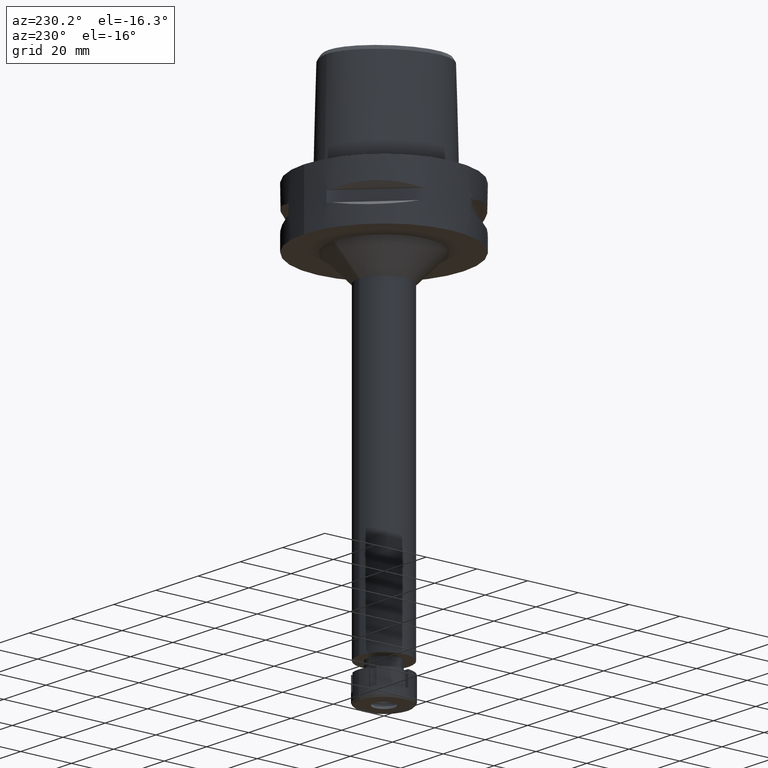
[diagram: clean part render]
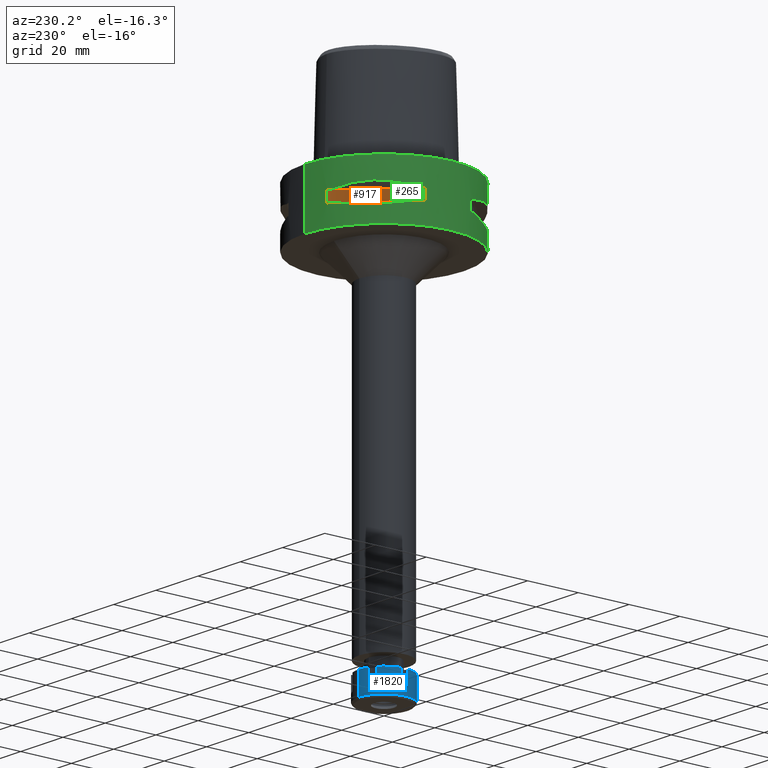
[diagram: same view with three faces highlighted in distinct colors, each labeled with its STEP entity id]
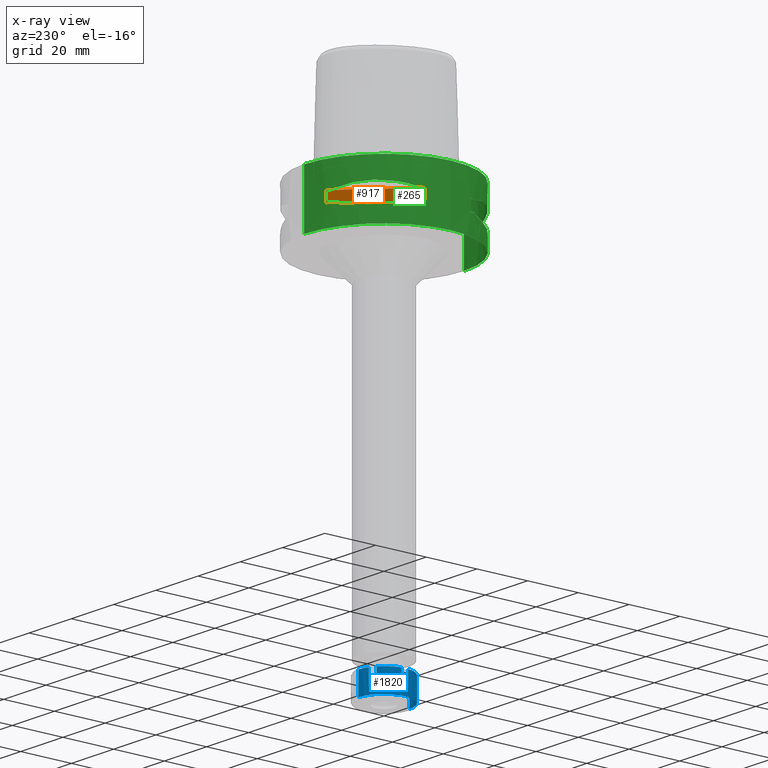
[diagram: x-ray of the same camera — body ghosted, the three highlighted faces saturated]
A machine part, auxiliary view with three faces highlighted in distinct colors.
The next image is the same camera in x-ray (body ghosted, the three faces saturated) — at least one of them is partly hidden behind the body in this view.
Their STEP definitions:

[orange] entity #917 — the highlighted planar face has unit normal (0.7071, -0.7071, 0).
#461 = CARTESIAN_POINT ( 'NONE',  ( -8.981198972019999616, 30.19251670572000279, -9.950000000000001066 ) ) ;
#465 = CARTESIAN_POINT ( 'NONE',  ( -8.981198972017999438, 30.19251670572000279, -14.05000000000000071 ) ) ;
#613 = DIRECTION ( 'NONE',  ( -0.7071067811865474617, -0.7071067811865474617, 0.0000000000000000000 ) ) ;
#917 = ADVANCED_FACE ( 'NONE', ( #4961 ), #4507, .F. ) ;
#957 = EDGE_CURVE ( 'NONE', #1874, #3326, #5499, .T. ) ;
#989 = DIRECTION ( 'NONE',  ( -0.7071067811865474617, -0.7071067811865474617, 0.0000000000000000000 ) ) ;
#1043 = VECTOR ( 'NONE', #1548, 1000.000000000000000 ) ;
#1503 = ORIENTED_EDGE ( 'NONE', *, *, #957, .T. ) ;
#1548 = DIRECTION ( 'NONE',  ( 0.0000000000000000000, 0.0000000000000000000, 1.000000000000000000 ) ) ;
#1576 = DIRECTION ( 'NONE',  ( 0.7071067811865475727, -0.7071067811865475727, 0.0000000000000000000 ) ) ;
#1706 = EDGE_LOOP ( 'NONE', ( #1729, #2079, #4238, #1503 ) ) ;
#1729 = ORIENTED_EDGE ( 'NONE', *, *, #4388, .F. ) ;
#1874 = VERTEX_POINT ( 'NONE', #5124 ) ;
#2079 = ORIENTED_EDGE ( 'NONE', *, *, #4594, .T. ) ;
#2201 = EDGE_CURVE ( 'NONE', #4614, #1874, #4468, .T. ) ;
#2584 = VECTOR ( 'NONE', #613, 1000.000000000000114 ) ;
#2795 = CARTESIAN_POINT ( 'NONE',  ( -8.981198972017999438, 30.19251670572000279, -14.05000000000000071 ) ) ;
#2908 = VECTOR ( 'NONE', #989, 1000.000000000000114 ) ;
#3293 = AXIS2_PLACEMENT_3D ( 'NONE', #3308, #1576, #3331 ) ;
#3308 = CARTESIAN_POINT ( 'NONE',  ( -33.72899346260000186, 5.444722215136000187, -9.950000000000001066 ) ) ;
#3326 = VERTEX_POINT ( 'NONE', #4963 ) ;
#3331 = DIRECTION ( 'NONE',  ( 0.0000000000000000000, 0.0000000000000000000, -1.000000000000000000 ) ) ;
#3438 = VECTOR ( 'NONE', #3746, 1000.000000000000000 ) ;
#3746 = DIRECTION ( 'NONE',  ( 0.0000000000000000000, 0.0000000000000000000, -1.000000000000000000 ) ) ;
#4238 = ORIENTED_EDGE ( 'NONE', *, *, #2201, .T. ) ;
#4359 = CARTESIAN_POINT ( 'NONE',  ( -8.981198972017999438, 30.19251670572000279, -9.950000000000001066 ) ) ;
#4388 = EDGE_CURVE ( 'NONE', #5223, #3326, #4834, .T. ) ;
#4468 = LINE ( 'NONE', #2795, #2584 ) ;
#4507 = PLANE ( 'NONE',  #3293 ) ;
#4594 = EDGE_CURVE ( 'NONE', #5223, #4614, #5544, .T. ) ;
#4614 = VERTEX_POINT ( 'NONE', #465 ) ;
#4834 = LINE ( 'NONE', #4359, #2908 ) ;
#4961 = FACE_OUTER_BOUND ( 'NONE', #1706, .T. ) ;
#4963 = CARTESIAN_POINT ( 'NONE',  ( -30.19251670572000279, 8.981198972017999438, -9.950000000000001066 ) ) ;
#5124 = CARTESIAN_POINT ( 'NONE',  ( -30.19251670572000279, 8.981198972019999616, -14.05000000000000071 ) ) ;
#5223 = VERTEX_POINT ( 'NONE', #461 ) ;
#5417 = CARTESIAN_POINT ( 'NONE',  ( -30.19251670572000279, 8.981198972017999438, -14.05000000000000071 ) ) ;
#5499 = LINE ( 'NONE', #5417, #1043 ) ;
#5511 = CARTESIAN_POINT ( 'NONE',  ( -8.981198972017999438, 30.19251670572000279, -9.950000000000001066 ) ) ;
#5544 = LINE ( 'NONE', #5511, #3438 ) ;

[blue] entity #1820 — the highlighted cylindrical surface (edge-blend (fillet) strip) has radius 10 mm, axis along (0, 0, -1).
#55 = CARTESIAN_POINT ( 'NONE',  ( 0.0000000000000000000, 0.0000000000000000000, -6.000000000000000000 ) ) ;
#56 = EDGE_CURVE ( 'NONE', #3932, #3708, #4712, .T. ) ;
#69 = CARTESIAN_POINT ( 'NONE',  ( 0.0000000000000000000, 0.0000000000000000000, -6.000000000000000000 ) ) ;
#127 = EDGE_CURVE ( 'NONE', #4561, #2163, #4117, .T. ) ;
#158 = CARTESIAN_POINT ( 'NONE',  ( 0.0000000000000000000, 10.00000000000000000, 0.0000000000000000000 ) ) ;
#185 = DIRECTION ( 'NONE',  ( 0.0000000000000000000, 1.000000000000000000, 0.0000000000000000000 ) ) ;
#238 = DIRECTION ( 'NONE',  ( -0.3878251953515154948, 0.9217329428042371209, 0.0000000000000000000 ) ) ;
#250 = DIRECTION ( 'NONE',  ( 0.0000000000000000000, -1.000000000000000000, 0.0000000000000000000 ) ) ;
#255 = EDGE_CURVE ( 'NONE', #1809, #5192, #1995, .T. ) ;
#268 = VERTEX_POINT ( 'NONE', #2310 ) ;
#283 = CARTESIAN_POINT ( 'NONE',  ( -9.921567416491999580, 1.250000000000000000, 0.0000000000000000000 ) ) ;
#334 = EDGE_CURVE ( 'NONE', #3932, #1940, #4574, .T. ) ;
#434 = CARTESIAN_POINT ( 'NONE',  ( -9.921567416491999580, 1.250000000000000000, -6.000000000000000000 ) ) ;
#462 = CIRCLE ( 'NONE', #2904, 10.00000000000000000 ) ;
#468 = VECTOR ( 'NONE', #1887, 1000.000000000000000 ) ;
#543 = DIRECTION ( 'NONE',  ( -0.9921567416492210745, -0.1250000000000026090, 0.0000000000000000000 ) ) ;
#632 = DIRECTION ( 'NONE',  ( 0.0000000000000000000, 0.0000000000000000000, -1.000000000000000000 ) ) ;
#727 = CARTESIAN_POINT ( 'NONE',  ( 0.0000000000000000000, 0.0000000000000000000, 0.0000000000000000000 ) ) ;
#737 = AXIS2_PLACEMENT_3D ( 'NONE', #69, #2252, #543 ) ;
#787 = CARTESIAN_POINT ( 'NONE',  ( 0.0000000000000000000, 0.0000000000000000000, 0.0000000000000000000 ) ) ;
#807 = DIRECTION ( 'NONE',  ( 0.0000000000000000000, 0.0000000000000000000, -1.000000000000000000 ) ) ;
#853 = CARTESIAN_POINT ( 'NONE',  ( -3.878251953516000050, -9.217329428041999506, -6.000000000000000000 ) ) ;
#861 = AXIS2_PLACEMENT_3D ( 'NONE', #3661, #5381, #2466 ) ;
#923 = ORIENTED_EDGE ( 'NONE', *, *, #255, .F. ) ;
#965 = CARTESIAN_POINT ( 'NONE',  ( 0.0000000000000000000, -10.00000000000000000, -8.800000000000000711 ) ) ;
#1025 = CIRCLE ( 'NONE', #3716, 9.999999999999998224 ) ;
#1093 = DIRECTION ( 'NONE',  ( 0.0000000000000000000, 0.0000000000000000000, 1.000000000000000000 ) ) ;
#1162 = ORIENTED_EDGE ( 'NONE', *, *, #56, .T. ) ;
#1169 = DIRECTION ( 'NONE',  ( -0.9921567416492210745, 0.1250000000000026090, 0.0000000000000000000 ) ) ;
#1248 = DIRECTION ( 'NONE',  ( 0.0000000000000000000, 0.0000000000000000000, -1.000000000000000000 ) ) ;
#1411 = CIRCLE ( 'NONE', #5269, 9.999999999999998224 ) ;
#1413 = VECTOR ( 'NONE', #4147, 1000.000000000000000 ) ;
#1455 = LINE ( 'NONE', #4861, #1506 ) ;
#1506 = VECTOR ( 'NONE', #3073, 1000.000000000000000 ) ;
#1516 = CARTESIAN_POINT ( 'NONE',  ( -6.043315462977000507, 7.967329428041999506, -6.000000000000000000 ) ) ;
#1526 = CARTESIAN_POINT ( 'NONE',  ( -9.921567416491999580, -1.250000000000000000, -6.000000000000000000 ) ) ;
#1547 = CARTESIAN_POINT ( 'NONE',  ( 0.0000000000000000000, 0.0000000000000000000, 0.0000000000000000000 ) ) ;
#1599 = CIRCLE ( 'NONE', #861, 10.00000000000000000 ) ;
#1655 = ORIENTED_EDGE ( 'NONE', *, *, #5325, .F. ) ;
#1659 = VECTOR ( 'NONE', #3324, 1000.000000000000000 ) ;
#1774 = ORIENTED_EDGE ( 'NONE', *, *, #2314, .T. ) ;
#1785 = DIRECTION ( 'NONE',  ( 0.0000000000000000000, 0.0000000000000000000, -1.000000000000000000 ) ) ;
#1809 = VERTEX_POINT ( 'NONE', #283 ) ;
#1817 = VERTEX_POINT ( 'NONE', #1516 ) ;
#1820 = ADVANCED_FACE ( 'NONE', ( #4589 ), #2474, .T. ) ;
#1887 = DIRECTION ( 'NONE',  ( 0.0000000000000000000, 0.0000000000000000000, -1.000000000000000000 ) ) ;
#1894 = EDGE_LOOP ( 'NONE', ( #1983, #2302, #2068, #5313, #2627, #1162, #3151, #2392, #2894, #1928, #1655, #5280, #923, #1774, #4890, #2765 ) ) ;
#1928 = ORIENTED_EDGE ( 'NONE', *, *, #4872, .T. ) ;
#1938 = DIRECTION ( 'NONE',  ( 0.0000000000000000000, 0.0000000000000000000, -1.000000000000000000 ) ) ;
#1940 = VERTEX_POINT ( 'NONE', #965 ) ;
#1983 = ORIENTED_EDGE ( 'NONE', *, *, #2106, .F. ) ;
#1987 = VERTEX_POINT ( 'NONE', #158 ) ;
#1995 = LINE ( 'NONE', #2445, #1413 ) ;
#2068 = ORIENTED_EDGE ( 'NONE', *, *, #4757, .T. ) ;
#2084 = DIRECTION ( 'NONE',  ( 0.0000000000000000000, 0.0000000000000000000, -1.000000000000000000 ) ) ;
#2106 = EDGE_CURVE ( 'NONE', #268, #4170, #1455, .T. ) ;
#2163 = VERTEX_POINT ( 'NONE', #5030 ) ;
#2212 = EDGE_CURVE ( 'NONE', #4487, #2163, #1599, .T. ) ;
#2252 = DIRECTION ( 'NONE',  ( 0.0000000000000000000, 0.0000000000000000000, -1.000000000000000000 ) ) ;
#2302 = ORIENTED_EDGE ( 'NONE', *, *, #2690, .T. ) ;
#2310 = CARTESIAN_POINT ( 'NONE',  ( -3.878251953514999961, 9.217329428041999506, 0.0000000000000000000 ) ) ;
#2314 = EDGE_CURVE ( 'NONE', #1809, #2895, #1411, .T. ) ;
#2392 = ORIENTED_EDGE ( 'NONE', *, *, #2212, .T. ) ;
#2437 = CARTESIAN_POINT ( 'NONE',  ( -6.043315462977000507, 7.967329428041999506, 0.0000000000000000000 ) ) ;
#2441 = CARTESIAN_POINT ( 'NONE',  ( -3.878251953514999961, 9.217329428041999506, -6.000000000000000000 ) ) ;
#2445 = CARTESIAN_POINT ( 'NONE',  ( -9.921567416491999580, 1.250000000000000000, 0.0000000000000000000 ) ) ;
#2466 = DIRECTION ( 'NONE',  ( -0.3878251953516005379, -0.9217329428042011497, 0.0000000000000000000 ) ) ;
#2474 = CYLINDRICAL_SURFACE ( 'NONE', #4988, 10.00000000000000000 ) ;
#2627 = ORIENTED_EDGE ( 'NONE', *, *, #334, .F. ) ;
#2690 = EDGE_CURVE ( 'NONE', #268, #1987, #4953, .T. ) ;
#2718 = EDGE_CURVE ( 'NONE', #1817, #4170, #5408, .T. ) ;
#2764 = CARTESIAN_POINT ( 'NONE',  ( -3.878251953516000050, -9.217329428041999506, -6.000000000000000000 ) ) ;
#2765 = ORIENTED_EDGE ( 'NONE', *, *, #2718, .T. ) ;
#2894 = ORIENTED_EDGE ( 'NONE', *, *, #127, .F. ) ;
#2895 = VERTEX_POINT ( 'NONE', #2437 ) ;
#2904 = AXIS2_PLACEMENT_3D ( 'NONE', #4027, #5441, #185 ) ;
#2933 = CARTESIAN_POINT ( 'NONE',  ( -6.043315462977000507, 7.967329428041999506, -6.000000000000000000 ) ) ;
#2948 = DIRECTION ( 'NONE',  ( 0.0000000000000000000, -1.000000000000000000, 0.0000000000000000000 ) ) ;
#3057 = EDGE_CURVE ( 'NONE', #4718, #5192, #3168, .T. ) ;
#3073 = DIRECTION ( 'NONE',  ( 0.0000000000000000000, 0.0000000000000000000, -1.000000000000000000 ) ) ;
#3074 = AXIS2_PLACEMENT_3D ( 'NONE', #727, #632, #238 ) ;
#3151 = ORIENTED_EDGE ( 'NONE', *, *, #5533, .F. ) ;
#3168 = CIRCLE ( 'NONE', #737, 9.999999999999998224 ) ;
#3174 = LINE ( 'NONE', #1526, #4070 ) ;
#3324 = DIRECTION ( 'NONE',  ( 0.0000000000000000000, 0.0000000000000000000, 1.000000000000000000 ) ) ;
#3396 = CARTESIAN_POINT ( 'NONE',  ( -6.043315462977000507, -7.967329428041999506, 0.0000000000000000000 ) ) ;
#3420 = CARTESIAN_POINT ( 'NONE',  ( -9.921567416491999580, -1.250000000000000000, -6.000000000000000000 ) ) ;
#3487 = DIRECTION ( 'NONE',  ( -0.6043315462976971419, 0.7967329428041960426, 0.0000000000000000000 ) ) ;
#3617 = VERTEX_POINT ( 'NONE', #4628 ) ;
#3618 = CARTESIAN_POINT ( 'NONE',  ( 0.0000000000000000000, 10.00000000000000000, -8.800000000000000711 ) ) ;
#3661 = CARTESIAN_POINT ( 'NONE',  ( 0.0000000000000000000, 0.0000000000000000000, -6.000000000000000000 ) ) ;
#3708 = VERTEX_POINT ( 'NONE', #5303 ) ;
#3716 = AXIS2_PLACEMENT_3D ( 'NONE', #1547, #2084, #5416 ) ;
#3876 = AXIS2_PLACEMENT_3D ( 'NONE', #55, #1785, #3487 ) ;
#3932 = VERTEX_POINT ( 'NONE', #4276 ) ;
#4007 = VECTOR ( 'NONE', #807, 1000.000000000000000 ) ;
#4027 = CARTESIAN_POINT ( 'NONE',  ( 0.0000000000000000000, 0.0000000000000000000, -8.800000000000000711 ) ) ;
#4070 = VECTOR ( 'NONE', #1093, 1000.000000000000000 ) ;
#4117 = LINE ( 'NONE', #4867, #4806 ) ;
#4147 = DIRECTION ( 'NONE',  ( 0.0000000000000000000, 0.0000000000000000000, -1.000000000000000000 ) ) ;
#4170 = VERTEX_POINT ( 'NONE', #2441 ) ;
#4264 = EDGE_CURVE ( 'NONE', #5346, #1940, #462, .T. ) ;
#4276 = CARTESIAN_POINT ( 'NONE',  ( 0.0000000000000000000, -10.00000000000000000, 0.0000000000000000000 ) ) ;
#4278 = LINE ( 'NONE', #2933, #1659 ) ;
#4284 = DIRECTION ( 'NONE',  ( 0.0000000000000000000, 0.0000000000000000000, 1.000000000000000000 ) ) ;
#4357 = EDGE_CURVE ( 'NONE', #1817, #2895, #4278, .T. ) ;
#4393 = CARTESIAN_POINT ( 'NONE',  ( 0.0000000000000000000, 10.00000000000000000, 0.0000000000000000000 ) ) ;
#4487 = VERTEX_POINT ( 'NONE', #2764 ) ;
#4540 = AXIS2_PLACEMENT_3D ( 'NONE', #787, #1248, #2948 ) ;
#4557 = CARTESIAN_POINT ( 'NONE',  ( 0.0000000000000000000, 0.0000000000000000000, 0.0000000000000000000 ) ) ;
#4561 = VERTEX_POINT ( 'NONE', #3396 ) ;
#4574 = LINE ( 'NONE', #5480, #4007 ) ;
#4589 = FACE_OUTER_BOUND ( 'NONE', #1894, .T. ) ;
#4628 = CARTESIAN_POINT ( 'NONE',  ( -9.921567416491999580, -1.250000000000000000, 0.0000000000000000000 ) ) ;
#4712 = CIRCLE ( 'NONE', #4540, 10.00000000000000000 ) ;
#4718 = VERTEX_POINT ( 'NONE', #3420 ) ;
#4757 = EDGE_CURVE ( 'NONE', #1987, #5346, #4819, .T. ) ;
#4806 = VECTOR ( 'NONE', #1938, 1000.000000000000000 ) ;
#4819 = LINE ( 'NONE', #4393, #468 ) ;
#4861 = CARTESIAN_POINT ( 'NONE',  ( -3.878251953514999961, 9.217329428041999506, 0.0000000000000000000 ) ) ;
#4867 = CARTESIAN_POINT ( 'NONE',  ( -6.043315462977000507, -7.967329428041999506, 0.0000000000000000000 ) ) ;
#4872 = EDGE_CURVE ( 'NONE', #4561, #3617, #1025, .T. ) ;
#4890 = ORIENTED_EDGE ( 'NONE', *, *, #4357, .F. ) ;
#4926 = DIRECTION ( 'NONE',  ( 0.0000000000000000000, 0.0000000000000000000, -1.000000000000000000 ) ) ;
#4953 = CIRCLE ( 'NONE', #3074, 10.00000000000000000 ) ;
#4988 = AXIS2_PLACEMENT_3D ( 'NONE', #5411, #4926, #250 ) ;
#5007 = DIRECTION ( 'NONE',  ( 0.0000000000000000000, 0.0000000000000000000, -1.000000000000000000 ) ) ;
#5030 = CARTESIAN_POINT ( 'NONE',  ( -6.043315462977000507, -7.967329428041999506, -6.000000000000000000 ) ) ;
#5127 = LINE ( 'NONE', #853, #5153 ) ;
#5153 = VECTOR ( 'NONE', #4284, 1000.000000000000000 ) ;
#5192 = VERTEX_POINT ( 'NONE', #434 ) ;
#5269 = AXIS2_PLACEMENT_3D ( 'NONE', #4557, #5007, #1169 ) ;
#5280 = ORIENTED_EDGE ( 'NONE', *, *, #3057, .T. ) ;
#5303 = CARTESIAN_POINT ( 'NONE',  ( -3.878251953516000050, -9.217329428041999506, 0.0000000000000000000 ) ) ;
#5313 = ORIENTED_EDGE ( 'NONE', *, *, #4264, .T. ) ;
#5325 = EDGE_CURVE ( 'NONE', #4718, #3617, #3174, .T. ) ;
#5346 = VERTEX_POINT ( 'NONE', #3618 ) ;
#5381 = DIRECTION ( 'NONE',  ( 0.0000000000000000000, 0.0000000000000000000, -1.000000000000000000 ) ) ;
#5408 = CIRCLE ( 'NONE', #3876, 9.999999999999998224 ) ;
#5411 = CARTESIAN_POINT ( 'NONE',  ( 0.0000000000000000000, 0.0000000000000000000, 0.0000000000000000000 ) ) ;
#5416 = DIRECTION ( 'NONE',  ( -0.6043315462976971419, -0.7967329428041960426, 0.0000000000000000000 ) ) ;
#5441 = DIRECTION ( 'NONE',  ( 0.0000000000000000000, 0.0000000000000000000, 1.000000000000000000 ) ) ;
#5480 = CARTESIAN_POINT ( 'NONE',  ( 0.0000000000000000000, -10.00000000000000000, 0.0000000000000000000 ) ) ;
#5533 = EDGE_CURVE ( 'NONE', #4487, #3708, #5127, .T. ) ;

[green] entity #265 — the highlighted cylindrical surface (partial cylindrical patch) has radius 31.5 mm, axis along (0, 0, -1).
#31 = CARTESIAN_POINT ( 'NONE',  ( 0.0000000000000000000, 1.322618543078999814E-14, 0.0000000000000000000 ) ) ;
#35 = VERTEX_POINT ( 'NONE', #2118 ) ;
#66 = ORIENTED_EDGE ( 'NONE', *, *, #2109, .T. ) ;
#96 = EDGE_CURVE ( 'NONE', #240, #2515, #778, .T. ) ;
#123 = ORIENTED_EDGE ( 'NONE', *, *, #2888, .F. ) ;
#178 = CARTESIAN_POINT ( 'NONE',  ( -16.70616724745637072, 26.70521063584585164, -15.37546661817639126 ) ) ;
#240 = VERTEX_POINT ( 'NONE', #1486 ) ;
#244 = CARTESIAN_POINT ( 'NONE',  ( -26.58330558444411906, -16.89910283486596754, -15.40446471307235754 ) ) ;
#265 = ADVANCED_FACE ( 'NONE', ( #3407, #1176, #1110 ), #5514, .T. ) ;
#278 = CARTESIAN_POINT ( 'NONE',  ( -12.70097436183464268, -28.92472615205406683, -9.353533115206115411 ) ) ;
#289 = CIRCLE ( 'NONE', #5418, 31.50000000000000000 ) ;
#290 = CARTESIAN_POINT ( 'NONE',  ( -30.19251670572000279, -8.981198972017999438, -14.05000000000000071 ) ) ;
#308 = ORIENTED_EDGE ( 'NONE', *, *, #3642, .T. ) ;
#321 = LINE ( 'NONE', #1973, #688 ) ;
#335 = CARTESIAN_POINT ( 'NONE',  ( -8.981198972017999438, -30.19251670572000279, -9.950000000000001066 ) ) ;
#368 = EDGE_CURVE ( 'NONE', #5223, #35, #1146, .T. ) ;
#407 = CARTESIAN_POINT ( 'NONE',  ( -26.84474411198783628, -16.48208282228858224, -15.34094883777952667 ) ) ;
#427 = EDGE_CURVE ( 'NONE', #240, #3339, #3336, .T. ) ;
#455 = B_SPLINE_CURVE_WITH_KNOTS ( 'NONE', 3,
 ( #3235, #4465, #2347, #4045, #3576, #2436, #178, #1986, #4490, #3627, #1104, #4109, #3687, #5350, #4973, #1452, #1136, #5294, #3213, #637, #2374, #2844, #4555, #4858 ),
 .UNSPECIFIED., .F., .F.,
 ( 4, 1, 1, 1, 1, 1, 2, 2, 2, 1, 1, 1, 1, 1, 2, 2, 4 ),
 ( 0.0000000000000000000, 0.1249999999999950040, 0.1874999999999924505, 0.2187499999999911737, 0.2343749999999902855, 0.2421874999999899802, 0.2460937499999900080, 0.2499999999999900080, 0.4999999999999917843, 0.6249999999999925615, 0.6874999999999925615, 0.7187499999999924505, 0.7343749999999926725, 0.7421874999999927836, 0.7460937499999928946, 0.7499999999999931166, 1.000000000000000000 ),
 .UNSPECIFIED. ) ;
#461 = CARTESIAN_POINT ( 'NONE',  ( -8.981198972019999616, 30.19251670572000279, -9.950000000000001066 ) ) ;
#465 = CARTESIAN_POINT ( 'NONE',  ( -8.981198972017999438, 30.19251670572000279, -14.05000000000000071 ) ) ;
#483 = ORIENTED_EDGE ( 'NONE', *, *, #4489, .F. ) ;
#489 = ORIENTED_EDGE ( 'NONE', *, *, #5042, .T. ) ;
#495 = AXIS2_PLACEMENT_3D ( 'NONE', #2574, #948, #2336 ) ;
#536 = CARTESIAN_POINT ( 'NONE',  ( -10.44775724750000023, -29.71690375017999841, -14.05000000000000071 ) ) ;
#566 = CIRCLE ( 'NONE', #4337, 31.50000000000000711 ) ;
#592 = CARTESIAN_POINT ( 'NONE',  ( -14.84430321578702738, -27.88210502983994132, -8.906184731967037749 ) ) ;
#606 = ORIENTED_EDGE ( 'NONE', *, *, #427, .F. ) ;
#637 = CARTESIAN_POINT ( 'NONE',  ( -26.52527364208584615, 16.98999780422065342, -15.41788098766309467 ) ) ;
#679 = CARTESIAN_POINT ( 'NONE',  ( -27.88214534470564132, -14.84422749199032232, -8.906206096497937708 ) ) ;
#688 = VECTOR ( 'NONE', #4095, 1000.000000000000000 ) ;
#704 = CARTESIAN_POINT ( 'NONE',  ( -26.60451452154760332, -16.86571563436626064, -15.39949295786003347 ) ) ;
#755 = CARTESIAN_POINT ( 'NONE',  ( 0.0000000000000000000, 1.322618543078999814E-14, -9.950000000000001066 ) ) ;
#778 = CIRCLE ( 'NONE', #1320, 31.50000000000001776 ) ;
#808 = CARTESIAN_POINT ( 'NONE',  ( -17.14106442934810204, -26.42800887047570058, -15.43984550238532982 ) ) ;
#834 = VERTEX_POINT ( 'NONE', #1005 ) ;
#835 = ORIENTED_EDGE ( 'NONE', *, *, #2491, .T. ) ;
#837 = CARTESIAN_POINT ( 'NONE',  ( -25.37272068398780434, 18.81462633032050746, -8.309724968596491124 ) ) ;
#840 = DIRECTION ( 'NONE',  ( -0.2851174276831918153, -0.9584925938322735872, 0.0000000000000000000 ) ) ;
#858 = VERTEX_POINT ( 'NONE', #3200 ) ;
#865 = CARTESIAN_POINT ( 'NONE',  ( -29.71690375017999841, -10.44775724750000023, -14.05000000000000071 ) ) ;
#908 = DIRECTION ( 'NONE',  ( 0.0000000000000000000, 0.0000000000000000000, -1.000000000000000000 ) ) ;
#948 = DIRECTION ( 'NONE',  ( 0.0000000000000000000, 0.0000000000000000000, -1.000000000000000000 ) ) ;
#953 = EDGE_CURVE ( 'NONE', #3153, #1021, #321, .T. ) ;
#957 = EDGE_CURVE ( 'NONE', #1874, #3326, #5499, .T. ) ;
#970 = VERTEX_POINT ( 'NONE', #1608 ) ;
#975 = EDGE_LOOP ( 'NONE', ( #987, #1619, #1462, #123, #308, #606, #1106, #4451 ) ) ;
#987 = ORIENTED_EDGE ( 'NONE', *, *, #5297, .T. ) ;
#1002 = ORIENTED_EDGE ( 'NONE', *, *, #2490, .T. ) ;
#1005 = CARTESIAN_POINT ( 'NONE',  ( -10.44775724750000023, 29.71690375017999841, -14.05000000000000071 ) ) ;
#1009 = DIRECTION ( 'NONE',  ( -0.3316748332540863653, -0.9433937698468619626, 0.0000000000000000000 ) ) ;
#1021 = VERTEX_POINT ( 'NONE', #1634 ) ;
#1043 = VECTOR ( 'NONE', #1548, 1000.000000000000000 ) ;
#1056 = DIRECTION ( 'NONE',  ( 0.0000000000000000000, 0.0000000000000000000, 1.000000000000000000 ) ) ;
#1060 = DIRECTION ( 'NONE',  ( 0.0000000000000000000, 0.0000000000000000000, -1.000000000000000000 ) ) ;
#1085 = DIRECTION ( 'NONE',  ( -0.9584925938322735872, -0.2851174276831918153, 0.0000000000000000000 ) ) ;
#1104 = CARTESIAN_POINT ( 'NONE',  ( -18.86897208073744991, 25.32725744467937545, -15.69588095933747240 ) ) ;
#1106 = ORIENTED_EDGE ( 'NONE', *, *, #96, .T. ) ;
#1110 = FACE_BOUND ( 'NONE', #975, .T. ) ;
#1114 = CARTESIAN_POINT ( 'NONE',  ( -29.71690375017999841, 10.44775724750000023, -14.05000000000000071 ) ) ;
#1115 = AXIS2_PLACEMENT_3D ( 'NONE', #5357, #1060, #2023 ) ;
#1136 = CARTESIAN_POINT ( 'NONE',  ( -26.29071741523646111, 17.35163608579689409, -15.46976201925398087 ) ) ;
#1139 = CARTESIAN_POINT ( 'NONE',  ( -17.35163608579889072, -26.29071741523761929, -15.46976201925527761 ) ) ;
#1145 = CARTESIAN_POINT ( 'NONE',  ( -18.81462633032050391, -25.37272068398777947, -8.309724968596489347 ) ) ;
#1146 = CIRCLE ( 'NONE', #1510, 31.50000000000001776 ) ;
#1176 = FACE_BOUND ( 'NONE', #3665, .T. ) ;
#1246 = CARTESIAN_POINT ( 'NONE',  ( -29.31542262584746794, -11.58970337494326941, -14.35229357166913999 ) ) ;
#1263 = CARTESIAN_POINT ( 'NONE',  ( -10.44775724750000023, 29.71690375017999841, -9.949999999998999201 ) ) ;
#1268 = CARTESIAN_POINT ( 'NONE',  ( -25.32725744469575702, -18.86897208070564247, -15.69588095933118943 ) ) ;
#1320 = AXIS2_PLACEMENT_3D ( 'NONE', #4472, #4899, #1085 ) ;
#1370 = DIRECTION ( 'NONE',  ( -0.9433937698468619626, -0.3316748332540863653, 0.0000000000000000000 ) ) ;
#1372 = AXIS2_PLACEMENT_3D ( 'NONE', #2095, #3772, #840 ) ;
#1441 = ORIENTED_EDGE ( 'NONE', *, *, #953, .T. ) ;
#1452 = CARTESIAN_POINT ( 'NONE',  ( -26.01217882834653139, 17.76952662671834915, -15.52665221626015501 ) ) ;
#1462 = ORIENTED_EDGE ( 'NONE', *, *, #2386, .T. ) ;
#1466 = CIRCLE ( 'NONE', #1372, 31.50000000000001776 ) ;
#1467 = CARTESIAN_POINT ( 'NONE',  ( 0.0000000000000000000, 1.322618543078999814E-14, -9.950000000000001066 ) ) ;
#1486 = CARTESIAN_POINT ( 'NONE',  ( -30.19251670572000279, -8.981198972019999616, -9.950000000000001066 ) ) ;
#1510 = AXIS2_PLACEMENT_3D ( 'NONE', #755, #4967, #2514 ) ;
#1534 = VERTEX_POINT ( 'NONE', #2691 ) ;
#1542 = VERTEX_POINT ( 'NONE', #536 ) ;
#1548 = DIRECTION ( 'NONE',  ( 0.0000000000000000000, 0.0000000000000000000, 1.000000000000000000 ) ) ;
#1608 = CARTESIAN_POINT ( 'NONE',  ( -29.71690375017999841, -10.44775724750000023, -14.05000000000000071 ) ) ;
#1619 = ORIENTED_EDGE ( 'NONE', *, *, #2594, .F. ) ;
#1623 = B_SPLINE_CURVE_WITH_KNOTS ( 'NONE', 3,
 ( #865, #1246, #3415, #3034, #2946, #407, #3820, #2146, #704, #244, #1268, #4657, #4110, #3847, #1743, #4556, #1139, #808, #2018, #5560, #1717, #3003, #2536, #4709 ),
 .UNSPECIFIED., .F., .F.,
 ( 4, 1, 1, 1, 1, 1, 2, 2, 2, 1, 1, 1, 1, 1, 2, 2, 4 ),
 ( 0.0000000000000000000, 0.1250000000000055511, 0.1875000000000083267, 0.2187500000000097977, 0.2343750000000106304, 0.2421875000000108247, 0.2460937500000108524, 0.2500000000000108802, 0.5000000000000087708, 0.6250000000000075495, 0.6875000000000071054, 0.7187500000000067724, 0.7343750000000066613, 0.7421875000000065503, 0.7460937500000062172, 0.7500000000000059952, 1.000000000000000000 ),
 .UNSPECIFIED. ) ;
#1634 = CARTESIAN_POINT ( 'NONE',  ( 0.0000000000000000000, 31.50000000000000000, -22.00000000000000000 ) ) ;
#1642 = ORIENTED_EDGE ( 'NONE', *, *, #4192, .T. ) ;
#1687 = EDGE_CURVE ( 'NONE', #3035, #858, #5445, .T. ) ;
#1717 = CARTESIAN_POINT ( 'NONE',  ( -16.96123479564984748, -26.54368690921626950, -15.41365572341332424 ) ) ;
#1734 = AXIS2_PLACEMENT_3D ( 'NONE', #5290, #3936, #2283 ) ;
#1743 = CARTESIAN_POINT ( 'NONE',  ( -18.59229662065495958, -25.43927894891979946, -15.62866126334684580 ) ) ;
#1763 = VECTOR ( 'NONE', #3253, 1000.000000000000000 ) ;
#1764 = DIRECTION ( 'NONE',  ( 0.0000000000000000000, 0.0000000000000000000, -1.000000000000000000 ) ) ;
#1793 = CARTESIAN_POINT ( 'NONE',  ( 0.0000000000000000000, 1.322618543078999814E-14, -14.05000000000000071 ) ) ;
#1795 = B_SPLINE_CURVE_WITH_KNOTS ( 'NONE', 3,
 ( #1263, #2967, #2493, #5027, #2568, #4190, #837, #3372, #4271, #4682 ),
 .UNSPECIFIED., .F., .F.,
 ( 4, 2, 2, 2, 4 ),
 ( 0.0000000000000000000, 0.2500000000000000000, 0.5000000000000000000, 0.7500000000000000000, 1.000000000000000000 ),
 .UNSPECIFIED. ) ;
#1805 = DIRECTION ( 'NONE',  ( 0.0000000000000000000, 0.0000000000000000000, -1.000000000000000000 ) ) ;
#1871 = DIRECTION ( 'NONE',  ( -0.3316748332540863653, 0.9433937698468619626, 0.0000000000000000000 ) ) ;
#1874 = VERTEX_POINT ( 'NONE', #5124 ) ;
#1902 = DIRECTION ( 'NONE',  ( 0.0000000000000000000, 1.000000000000000000, 0.0000000000000000000 ) ) ;
#1922 = ORIENTED_EDGE ( 'NONE', *, *, #957, .F. ) ;
#1963 = CARTESIAN_POINT ( 'NONE',  ( -29.71690375017999841, -10.44775724750000023, -9.949999999998999201 ) ) ;
#1973 = CARTESIAN_POINT ( 'NONE',  ( 0.0000000000000000000, 31.50000000000000000, 0.0000000000000000000 ) ) ;
#1986 = CARTESIAN_POINT ( 'NONE',  ( -16.80193241490443157, 26.64486562695815053, -15.38992683735661515 ) ) ;
#2018 = CARTESIAN_POINT ( 'NONE',  ( -17.05047092244293694, -26.48642424310493837, -15.42670883407686588 ) ) ;
#2023 = DIRECTION ( 'NONE',  ( -0.9584925938322735872, 0.2851174276831918153, 0.0000000000000000000 ) ) ;
#2095 = CARTESIAN_POINT ( 'NONE',  ( 0.0000000000000000000, 1.322618543078999814E-14, -14.05000000000000071 ) ) ;
#2109 = EDGE_CURVE ( 'NONE', #1021, #858, #2409, .T. ) ;
#2118 = CARTESIAN_POINT ( 'NONE',  ( -10.44775724750000023, 29.71690375017999841, -9.949999999998999201 ) ) ;
#2146 = CARTESIAN_POINT ( 'NONE',  ( -26.64486562695783789, -16.80193241490531975, -15.38992683735687272 ) ) ;
#2283 = DIRECTION ( 'NONE',  ( -0.9433937698468619626, 0.3316748332540863653, 0.0000000000000000000 ) ) ;
#2323 = ORIENTED_EDGE ( 'NONE', *, *, #1687, .F. ) ;
#2336 = DIRECTION ( 'NONE',  ( 0.0000000000000000000, -1.000000000000000000, 0.0000000000000000000 ) ) ;
#2347 = CARTESIAN_POINT ( 'NONE',  ( -13.25636937902232404, 28.62019653469382163, -14.74888225540932751 ) ) ;
#2354 = CARTESIAN_POINT ( 'NONE',  ( -20.64154884328073081, -23.90617837147174995, -8.160613588465015056 ) ) ;
#2371 = VERTEX_POINT ( 'NONE', #335 ) ;
#2374 = CARTESIAN_POINT ( 'NONE',  ( -26.54368690921649687, 16.96123479564916892, -15.41365572341313239 ) ) ;
#2386 = EDGE_CURVE ( 'NONE', #1534, #1542, #1466, .T. ) ;
#2409 = CIRCLE ( 'NONE', #4274, 31.50000000000000000 ) ;
#2416 = CARTESIAN_POINT ( 'NONE',  ( -23.90617837147175706, -20.64154884328073081, -8.160627831309682279 ) ) ;
#2436 = CARTESIAN_POINT ( 'NONE',  ( -16.48208282228564769, 26.84474411198887012, -15.34094883777873619 ) ) ;
#2490 = EDGE_CURVE ( 'NONE', #4658, #3326, #4319, .T. ) ;
#2491 = EDGE_CURVE ( 'NONE', #834, #4614, #4592, .T. ) ;
#2493 = CARTESIAN_POINT ( 'NONE',  ( -14.84422749199032943, 27.88214534470565198, -8.906206096497939484 ) ) ;
#2514 = DIRECTION ( 'NONE',  ( -0.2851174276831918153, 0.9584925938322735872, 0.0000000000000000000 ) ) ;
#2515 = VERTEX_POINT ( 'NONE', #3040 ) ;
#2536 = CARTESIAN_POINT ( 'NONE',  ( -12.73197616784617381, -28.91382665370159799, -14.65467361752943809 ) ) ;
#2568 = CARTESIAN_POINT ( 'NONE',  ( -20.64154884328072370, 23.90617837147178193, -8.160627831309682279 ) ) ;
#2574 = CARTESIAN_POINT ( 'NONE',  ( 0.0000000000000000000, 1.322618543078999814E-14, 8.000000000000000000 ) ) ;
#2594 = EDGE_CURVE ( 'NONE', #1534, #2371, #5229, .T. ) ;
#2691 = CARTESIAN_POINT ( 'NONE',  ( -8.981198972019999616, -30.19251670572000279, -14.05000000000000071 ) ) ;
#2703 = CARTESIAN_POINT ( 'NONE',  ( -8.981198972017999438, -30.19251670572000279, -14.05000000000000071 ) ) ;
#2723 = CARTESIAN_POINT ( 'NONE',  ( 0.0000000000000000000, -31.50000000000000000, 0.0000000000000000000 ) ) ;
#2731 = DIRECTION ( 'NONE',  ( 0.0000000000000000000, 0.0000000000000000000, 1.000000000000000000 ) ) ;
#2738 = CARTESIAN_POINT ( 'NONE',  ( 0.0000000000000000000, 1.322618543078999814E-14, -22.00000000000000000 ) ) ;
#2770 = DIRECTION ( 'NONE',  ( 0.0000000000000000000, -1.000000000000000000, 0.0000000000000000000 ) ) ;
#2844 = CARTESIAN_POINT ( 'NONE',  ( -27.86285265926284893, 14.89252659058025685, -15.10765629752004813 ) ) ;
#2888 = EDGE_CURVE ( 'NONE', #970, #1542, #1623, .T. ) ;
#2940 = B_SPLINE_CURVE_WITH_KNOTS ( 'NONE', 3,
 ( #1963, #3218, #679, #3692, #2416, #2354, #1145, #592, #278, #4864 ),
 .UNSPECIFIED., .F., .F.,
 ( 4, 2, 2, 2, 4 ),
 ( 0.0000000000000000000, 0.2499999999999999445, 0.4999999999999998890, 0.7499999999999997780, 1.000000000000000000 ),
 .UNSPECIFIED. ) ;
#2946 = CARTESIAN_POINT ( 'NONE',  ( -27.11872488589304453, -16.03138450078185429, -15.26880420107623237 ) ) ;
#2967 = CARTESIAN_POINT ( 'NONE',  ( -12.70092055730904868, 28.92474506844683901, -9.353547358226720121 ) ) ;
#3003 = CARTESIAN_POINT ( 'NONE',  ( -14.89252659053665440, -27.86285265927818600, -15.10765629750852135 ) ) ;
#3034 = CARTESIAN_POINT ( 'NONE',  ( -27.64634172018421410, -15.11986997309601577, -15.11207862403482238 ) ) ;
#3035 = VERTEX_POINT ( 'NONE', #2723 ) ;
#3040 = CARTESIAN_POINT ( 'NONE',  ( -29.71690375017999841, -10.44775724750000023, -9.949999999998999201 ) ) ;
#3077 = CIRCLE ( 'NONE', #4415, 31.50000000000000711 ) ;
#3153 = VERTEX_POINT ( 'NONE', #3528 ) ;
#3200 = CARTESIAN_POINT ( 'NONE',  ( 0.0000000000000000000, -31.50000000000000000, -22.00000000000000000 ) ) ;
#3213 = CARTESIAN_POINT ( 'NONE',  ( -26.48642424310458665, 17.05047092244234008, -15.42670883407647509 ) ) ;
#3218 = CARTESIAN_POINT ( 'NONE',  ( -28.92474506844683546, -12.70092055730903269, -9.353547358226718345 ) ) ;
#3235 = CARTESIAN_POINT ( 'NONE',  ( -10.44775724750000023, 29.71690375017999841, -14.05000000000000071 ) ) ;
#3253 = DIRECTION ( 'NONE',  ( 0.0000000000000000000, 0.0000000000000000000, -1.000000000000000000 ) ) ;
#3326 = VERTEX_POINT ( 'NONE', #4963 ) ;
#3330 = CARTESIAN_POINT ( 'NONE',  ( -10.44775724750000023, -29.71690375017999841, -9.949999999998999201 ) ) ;
#3336 = LINE ( 'NONE', #4210, #1763 ) ;
#3339 = VERTEX_POINT ( 'NONE', #290 ) ;
#3372 = CARTESIAN_POINT ( 'NONE',  ( -27.88210502983995553, 14.84430321578704515, -8.906184731967039525 ) ) ;
#3407 = FACE_OUTER_BOUND ( 'NONE', #5064, .T. ) ;
#3415 = CARTESIAN_POINT ( 'NONE',  ( -28.62019653468943048, -13.25636937903484203, -14.74888225541266884 ) ) ;
#3438 = VECTOR ( 'NONE', #3746, 1000.000000000000000 ) ;
#3522 = CIRCLE ( 'NONE', #1115, 31.50000000000001776 ) ;
#3528 = CARTESIAN_POINT ( 'NONE',  ( 0.0000000000000000000, 31.50000000000000000, 0.0000000000000000000 ) ) ;
#3537 = CARTESIAN_POINT ( 'NONE',  ( 0.0000000000000000000, 1.322618543078999814E-14, -14.05000000000000071 ) ) ;
#3576 = CARTESIAN_POINT ( 'NONE',  ( -16.03138450077636534, 27.11872488589498786, -15.26880420107476333 ) ) ;
#3627 = CARTESIAN_POINT ( 'NONE',  ( -16.89910283486545950, 26.58330558444438907, -15.40446471307224030 ) ) ;
#3642 = EDGE_CURVE ( 'NONE', #970, #3339, #3077, .T. ) ;
#3665 = EDGE_LOOP ( 'NONE', ( #1002, #1922, #1642, #483, #835, #4722, #5569, #489 ) ) ;
#3687 = CARTESIAN_POINT ( 'NONE',  ( -23.08532645888017854, 21.46242677077873751, -15.83938991065184076 ) ) ;
#3692 = CARTESIAN_POINT ( 'NONE',  ( -25.37277178168283953, -18.81455742163207390, -8.309746333127389306 ) ) ;
#3746 = DIRECTION ( 'NONE',  ( 0.0000000000000000000, 0.0000000000000000000, -1.000000000000000000 ) ) ;
#3772 = DIRECTION ( 'NONE',  ( 0.0000000000000000000, 0.0000000000000000000, -1.000000000000000000 ) ) ;
#3820 = CARTESIAN_POINT ( 'NONE',  ( -26.70521063584532229, -16.70616724745790549, -15.37546661817682292 ) ) ;
#3847 = CARTESIAN_POINT ( 'NONE',  ( -20.18579225686653444, -24.23018836745773541, -15.78559396979401974 ) ) ;
#3936 = DIRECTION ( 'NONE',  ( 0.0000000000000000000, 0.0000000000000000000, 1.000000000000000000 ) ) ;
#4045 = CARTESIAN_POINT ( 'NONE',  ( -15.11986997308662595, 27.64634172018752523, -15.11207862403231239 ) ) ;
#4054 = AXIS2_PLACEMENT_3D ( 'NONE', #3537, #1805, #1871 ) ;
#4095 = DIRECTION ( 'NONE',  ( 0.0000000000000000000, 0.0000000000000000000, -1.000000000000000000 ) ) ;
#4104 = ORIENTED_EDGE ( 'NONE', *, *, #4152, .T. ) ;
#4109 = CARTESIAN_POINT ( 'NONE',  ( -20.65093790435807364, 23.89673728056094859, -15.83935804902020550 ) ) ;
#4110 = CARTESIAN_POINT ( 'NONE',  ( -21.46242677078364025, -23.08532645888299939, -15.83938991065501867 ) ) ;
#4152 = EDGE_CURVE ( 'NONE', #3035, #3153, #289, .T. ) ;
#4190 = CARTESIAN_POINT ( 'NONE',  ( -23.90617837147178193, 20.64154884328073081, -8.160613588465018609 ) ) ;
#4192 = EDGE_CURVE ( 'NONE', #1874, #4280, #3522, .T. ) ;
#4198 = EDGE_CURVE ( 'NONE', #2515, #4807, #2940, .T. ) ;
#4210 = CARTESIAN_POINT ( 'NONE',  ( -30.19251670572000279, -8.981198972017999438, -9.950000000000001066 ) ) ;
#4271 = CARTESIAN_POINT ( 'NONE',  ( -28.92472615205409170, 12.70097436183467110, -9.353533115206120740 ) ) ;
#4274 = AXIS2_PLACEMENT_3D ( 'NONE', #2738, #1056, #1902 ) ;
#4280 = VERTEX_POINT ( 'NONE', #1114 ) ;
#4319 = CIRCLE ( 'NONE', #1734, 31.50000000000000711 ) ;
#4337 = AXIS2_PLACEMENT_3D ( 'NONE', #1467, #5368, #1009 ) ;
#4376 = CARTESIAN_POINT ( 'NONE',  ( -29.71690375017999841, 10.44775724750000023, -9.949999999998999201 ) ) ;
#4415 = AXIS2_PLACEMENT_3D ( 'NONE', #1793, #908, #1370 ) ;
#4451 = ORIENTED_EDGE ( 'NONE', *, *, #4198, .T. ) ;
#4465 = CARTESIAN_POINT ( 'NONE',  ( -11.58970337493613378, 29.31542262584994418, -14.35229357166721265 ) ) ;
#4472 = CARTESIAN_POINT ( 'NONE',  ( 0.0000000000000000000, 1.322618543078999814E-14, -9.950000000000001066 ) ) ;
#4489 = EDGE_CURVE ( 'NONE', #834, #4280, #455, .T. ) ;
#4490 = CARTESIAN_POINT ( 'NONE',  ( -16.86571563436579169, 26.60451452154777030, -15.39949295785988426 ) ) ;
#4499 = VECTOR ( 'NONE', #2731, 1000.000000000000000 ) ;
#4555 = CARTESIAN_POINT ( 'NONE',  ( -28.91382665368626093, 12.73197616788979047, -14.65467361754097197 ) ) ;
#4556 = CARTESIAN_POINT ( 'NONE',  ( -17.76952662672209371, -26.01217882834868433, -15.52665221626257264 ) ) ;
#4563 = CARTESIAN_POINT ( 'NONE',  ( 0.0000000000000000000, -31.50000000000000000, 0.0000000000000000000 ) ) ;
#4592 = CIRCLE ( 'NONE', #4054, 31.50000000000000711 ) ;
#4594 = EDGE_CURVE ( 'NONE', #5223, #4614, #5544, .T. ) ;
#4614 = VERTEX_POINT ( 'NONE', #465 ) ;
#4657 = CARTESIAN_POINT ( 'NONE',  ( -23.89673728055121416, -20.65093790435243193, -15.83935804901394739 ) ) ;
#4658 = VERTEX_POINT ( 'NONE', #4376 ) ;
#4682 = CARTESIAN_POINT ( 'NONE',  ( -29.71690375017999841, 10.44775724750000023, -9.949999999998999201 ) ) ;
#4709 = CARTESIAN_POINT ( 'NONE',  ( -10.44775724750000023, -29.71690375017999841, -14.05000000000000071 ) ) ;
#4722 = ORIENTED_EDGE ( 'NONE', *, *, #4594, .F. ) ;
#4807 = VERTEX_POINT ( 'NONE', #3330 ) ;
#4858 = CARTESIAN_POINT ( 'NONE',  ( -29.71690375017999841, 10.44775724750000023, -14.05000000000000071 ) ) ;
#4864 = CARTESIAN_POINT ( 'NONE',  ( -10.44775724750000023, -29.71690375017999841, -9.949999999998999201 ) ) ;
#4899 = DIRECTION ( 'NONE',  ( 0.0000000000000000000, 0.0000000000000000000, 1.000000000000000000 ) ) ;
#4963 = CARTESIAN_POINT ( 'NONE',  ( -30.19251670572000279, 8.981198972017999438, -9.950000000000001066 ) ) ;
#4967 = DIRECTION ( 'NONE',  ( 0.0000000000000000000, 0.0000000000000000000, 1.000000000000000000 ) ) ;
#4973 = CARTESIAN_POINT ( 'NONE',  ( -25.43927894891607622, 18.59229662064853983, -15.62866126334269623 ) ) ;
#5027 = CARTESIAN_POINT ( 'NONE',  ( -18.81455742163205613, 25.37277178168287151, -8.309746333127387530 ) ) ;
#5036 = DIRECTION ( 'NONE',  ( 0.0000000000000000000, 0.0000000000000000000, -1.000000000000000000 ) ) ;
#5042 = EDGE_CURVE ( 'NONE', #35, #4658, #1795, .T. ) ;
#5064 = EDGE_LOOP ( 'NONE', ( #66, #2323, #4104, #1441 ) ) ;
#5124 = CARTESIAN_POINT ( 'NONE',  ( -30.19251670572000279, 8.981198972019999616, -14.05000000000000071 ) ) ;
#5223 = VERTEX_POINT ( 'NONE', #461 ) ;
#5229 = LINE ( 'NONE', #2703, #4499 ) ;
#5290 = CARTESIAN_POINT ( 'NONE',  ( 0.0000000000000000000, 1.322618543078999814E-14, -9.950000000000001066 ) ) ;
#5294 = CARTESIAN_POINT ( 'NONE',  ( -26.42800887047508240, 17.14106442934706820, -15.43984550238465836 ) ) ;
#5297 = EDGE_CURVE ( 'NONE', #4807, #2371, #566, .T. ) ;
#5350 = CARTESIAN_POINT ( 'NONE',  ( -24.23018836745279714, 20.18579225685798306, -15.78559396978850415 ) ) ;
#5357 = CARTESIAN_POINT ( 'NONE',  ( 0.0000000000000000000, 1.322618543078999814E-14, -14.05000000000000071 ) ) ;
#5368 = DIRECTION ( 'NONE',  ( 0.0000000000000000000, 0.0000000000000000000, 1.000000000000000000 ) ) ;
#5417 = CARTESIAN_POINT ( 'NONE',  ( -30.19251670572000279, 8.981198972017999438, -14.05000000000000071 ) ) ;
#5418 = AXIS2_PLACEMENT_3D ( 'NONE', #31, #1764, #2770 ) ;
#5445 = LINE ( 'NONE', #4563, #5531 ) ;
#5499 = LINE ( 'NONE', #5417, #1043 ) ;
#5511 = CARTESIAN_POINT ( 'NONE',  ( -8.981198972017999438, 30.19251670572000279, -9.950000000000001066 ) ) ;
#5514 = CYLINDRICAL_SURFACE ( 'NONE', #495, 31.50000000000000000 ) ;
#5531 = VECTOR ( 'NONE', #5036, 1000.000000000000000 ) ;
#5544 = LINE ( 'NONE', #5511, #3438 ) ;
#5560 = CARTESIAN_POINT ( 'NONE',  ( -16.98999780422095540, -26.52527364208602734, -15.41788098766330783 ) ) ;
#5569 = ORIENTED_EDGE ( 'NONE', *, *, #368, .T. ) ;